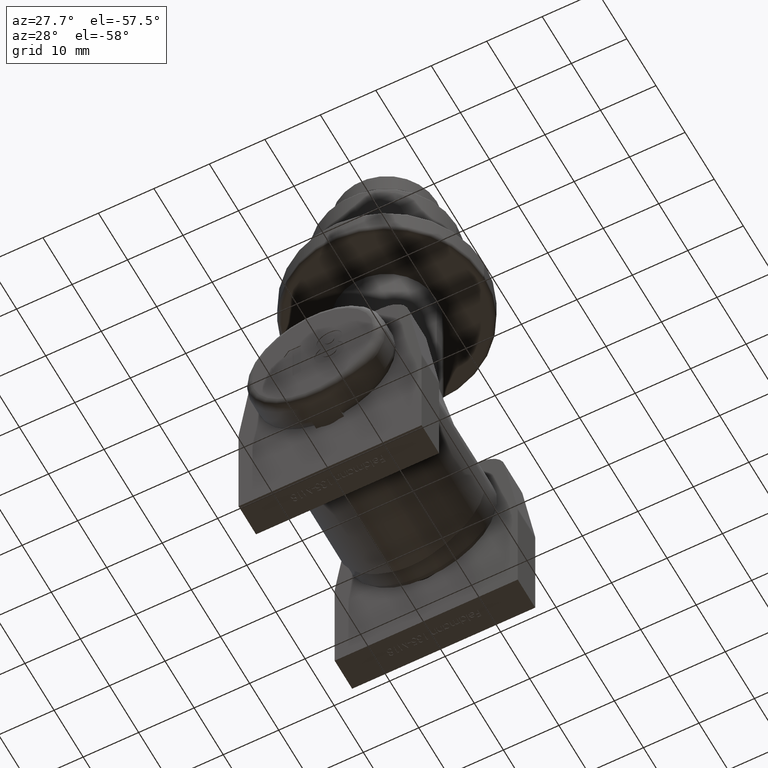
[diagram: clean part render]
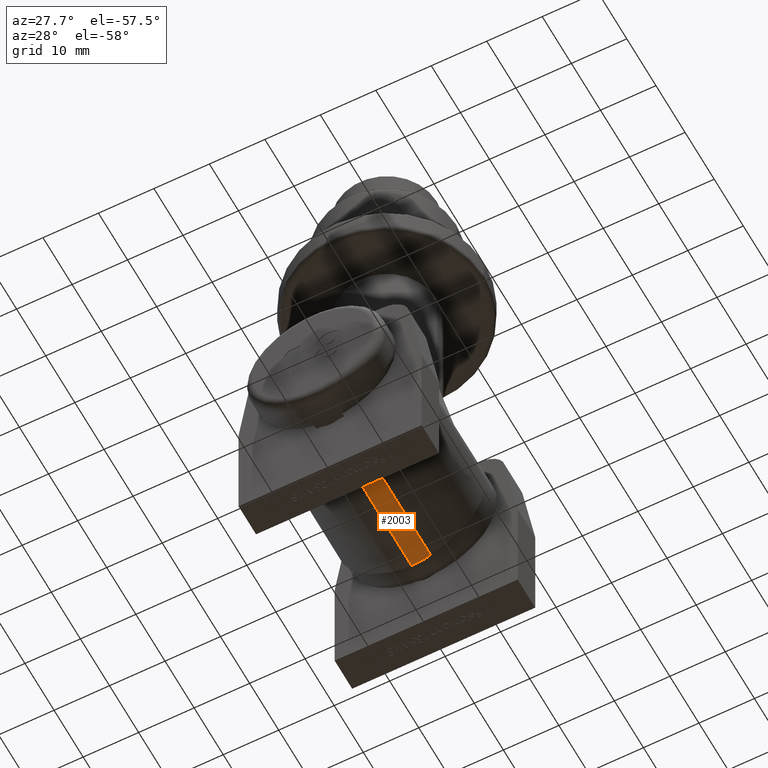
[diagram: same view with one face highlighted and labeled with its STEP entity id]
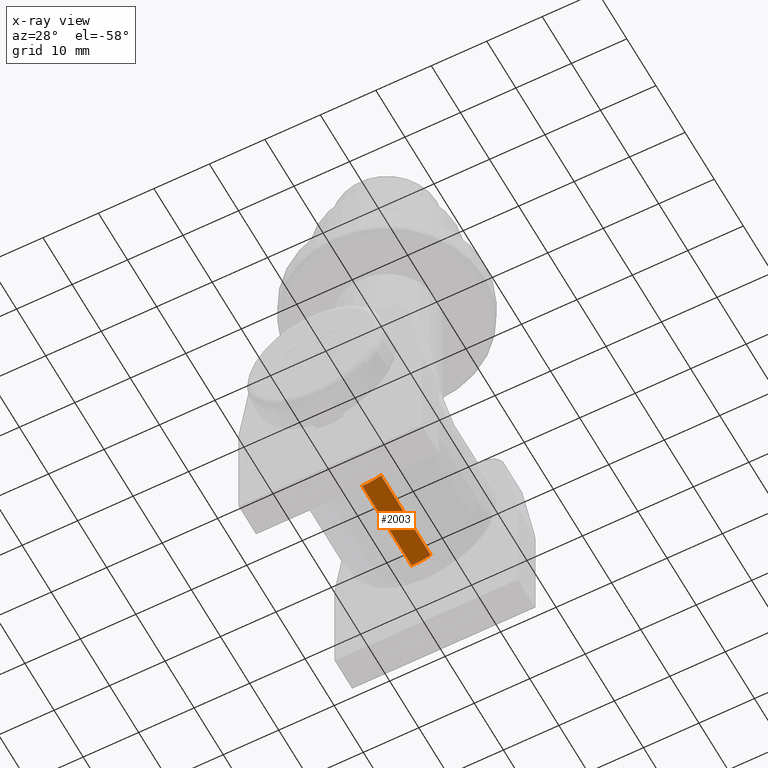
[diagram: x-ray of the same camera — body ghosted, the highlighted face saturated]
A machine part, auxiliary view. The second image highlights one B-rep face of the part: STEP entity #2003.
The next image is the same camera in x-ray: the body ghosted, the highlighted face saturated — about 0% of this face is hidden behind the body in this view.
In plain terms, the highlighted cylindrical surface (partial cylindrical patch) has radius 10 mm, axis along (-0, -1, -0).
Its self-contained STEP definition (entity closure, byte-faithful):
#88 = AXIS2_PLACEMENT_3D ( 'NONE', #4585, #11948, #15886 ) ;
#148 = DIRECTION ( 'NONE',  ( -0.0000000000000000000, -1.000000000000000000, -0.0000000000000000000 ) ) ;
#252 = CIRCLE ( 'NONE', #13410, 10.00000000000000900 ) ;
#329 = VERTEX_POINT ( 'NONE', #2766 ) ;
#459 = EDGE_CURVE ( 'NONE', #13461, #2012, #3035, .T. ) ;
#1479 = DIRECTION ( 'NONE',  ( 0.0000000000000000000, 0.0000000000000000000, 1.000000000000000000 ) ) ;
#1705 = CARTESIAN_POINT ( 'NONE',  ( 0.0000000000000000000, 8.500000000000000000, -15.75000000000000700 ) ) ;
#1995 = ORIENTED_EDGE ( 'NONE', *, *, #10574, .F. ) ;
#2003 = ADVANCED_FACE ( 'NONE', ( #10673 ), #2738, .T. ) ;
#2012 = VERTEX_POINT ( 'NONE', #2625 ) ;
#2625 = CARTESIAN_POINT ( 'NONE',  ( 3.426044219779641200, 8.500000000000000000, -15.14479754992701600 ) ) ;
#2738 = CYLINDRICAL_SURFACE ( 'NONE', #14488, 10.00000000000000700 ) ;
#2766 = CARTESIAN_POINT ( 'NONE',  ( 0.0000000000000000000, -8.500000000000000000, -15.75000000000000700 ) ) ;
#3035 = CIRCLE ( 'NONE', #88, 10.00000000000000900 ) ;
#4013 = CARTESIAN_POINT ( 'NONE',  ( 0.0000000000000000000, -8.500000000000000000, -5.750000000000000000 ) ) ;
#4280 = CARTESIAN_POINT ( 'NONE',  ( 3.426044219779641200, -8.500000000000000000, -15.14479754992701600 ) ) ;
#4585 = CARTESIAN_POINT ( 'NONE',  ( 0.0000000000000000000, 8.500000000000000000, -5.750000000000000000 ) ) ;
#4842 = DIRECTION ( 'NONE',  ( -0.0000000000000000000, -1.000000000000000000, -0.0000000000000000000 ) ) ;
#5839 = EDGE_CURVE ( 'NONE', #13461, #329, #6154, .T. ) ;
#6028 = ORIENTED_EDGE ( 'NONE', *, *, #14614, .T. ) ;
#6128 = LINE ( 'NONE', #11177, #12259 ) ;
#6154 = LINE ( 'NONE', #10090, #9407 ) ;
#6690 = ORIENTED_EDGE ( 'NONE', *, *, #459, .T. ) ;
#7241 = EDGE_LOOP ( 'NONE', ( #9517, #6690, #6028, #1995 ) ) ;
#7560 = DIRECTION ( 'NONE',  ( -0.0000000000000000000, -1.000000000000000000, -0.0000000000000000000 ) ) ;
#9407 = VECTOR ( 'NONE', #148, 1000.000000000000000 ) ;
#9517 = ORIENTED_EDGE ( 'NONE', *, *, #5839, .F. ) ;
#10090 = CARTESIAN_POINT ( 'NONE',  ( 0.0000000000000000000, 8.500000000000000000, -15.75000000000000700 ) ) ;
#10574 = EDGE_CURVE ( 'NONE', #329, #11324, #252, .T. ) ;
#10673 = FACE_OUTER_BOUND ( 'NONE', #7241, .T. ) ;
#11177 = CARTESIAN_POINT ( 'NONE',  ( 3.426044219779641200, 8.500000000000000000, -15.14479754992701600 ) ) ;
#11324 = VERTEX_POINT ( 'NONE', #4280 ) ;
#11948 = DIRECTION ( 'NONE',  ( -0.0000000000000000000, -1.000000000000000000, 0.0000000000000000000 ) ) ;
#12259 = VECTOR ( 'NONE', #4842, 1000.000000000000000 ) ;
#13410 = AXIS2_PLACEMENT_3D ( 'NONE', #4013, #13739, #1479 ) ;
#13461 = VERTEX_POINT ( 'NONE', #1705 ) ;
#13739 = DIRECTION ( 'NONE',  ( -0.0000000000000000000, -1.000000000000000000, 0.0000000000000000000 ) ) ;
#13790 = DIRECTION ( 'NONE',  ( 0.0000000000000000000, 0.0000000000000000000, -1.000000000000000000 ) ) ;
#14488 = AXIS2_PLACEMENT_3D ( 'NONE', #14934, #7560, #13790 ) ;
#14614 = EDGE_CURVE ( 'NONE', #2012, #11324, #6128, .T. ) ;
#14934 = CARTESIAN_POINT ( 'NONE',  ( 0.0000000000000000000, 8.500000000000000000, -5.750000000000000000 ) ) ;
#15886 = DIRECTION ( 'NONE',  ( 0.0000000000000000000, 0.0000000000000000000, 1.000000000000000000 ) ) ;